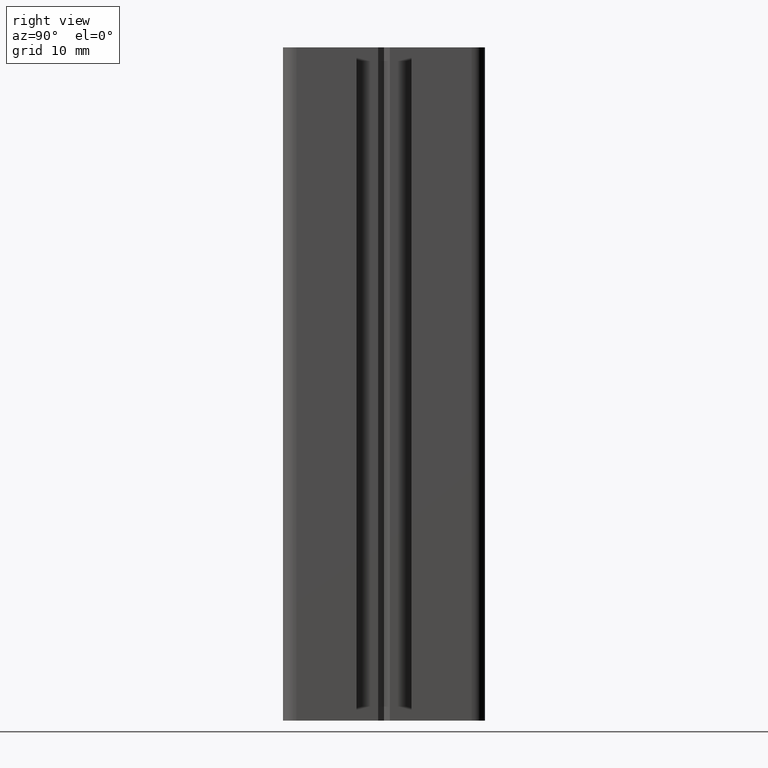
[diagram: clean part render]
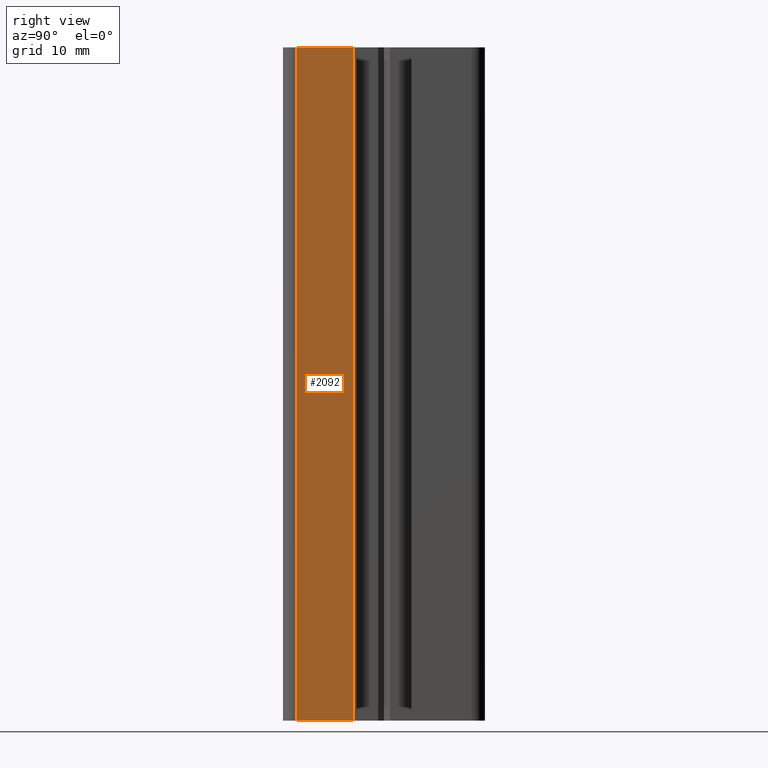
[diagram: same view with one face highlighted and labeled with its STEP entity id]
A machine part, right view. The second image highlights one B-rep face of the part: STEP entity #2092.
In plain terms, the highlighted planar face has unit normal (-1, -0, 0).
Its self-contained STEP definition (entity closure, byte-faithful):
#506 = EDGE_CURVE ( 'NONE', #1225, #1213, #2701, .T. ) ;
#632 = CARTESIAN_POINT ( 'NONE',  ( 15.00000000000000000, -4.499999999999991100, 0.0000000000000000000 ) ) ;
#655 = CARTESIAN_POINT ( 'NONE',  ( 15.00000000000001200, -12.99999999999998900, 0.0000000000000000000 ) ) ;
#704 = DIRECTION ( 'NONE',  ( -1.428595803745606200E-015, 1.000000000000000000, 0.0000000000000000000 ) ) ;
#705 = VECTOR ( 'NONE', #704, 1000.000000000000000 ) ;
#706 = CARTESIAN_POINT ( 'NONE',  ( 15.00000000000001200, -12.99999999999998900, 0.0000000000000000000 ) ) ;
#707 = LINE ( 'NONE', #706, #705 ) ;
#1213 = VERTEX_POINT ( 'NONE', #3347 ) ;
#1225 = VERTEX_POINT ( 'NONE', #3383 ) ;
#2028 = ORIENTED_EDGE ( 'NONE', *, *, #5271, .T. ) ;
#2030 = ORIENTED_EDGE ( 'NONE', *, *, #2043, .T. ) ;
#2031 = ORIENTED_EDGE ( 'NONE', *, *, #506, .F. ) ;
#2043 = EDGE_CURVE ( 'NONE', #1225, #5248, #4764, .T. ) ;
#2048 = EDGE_LOOP ( 'NONE', ( #2028, #2091, #2031, #2030 ) ) ;
#2090 = EDGE_CURVE ( 'NONE', #1213, #5219, #4814, .T. ) ;
#2091 = ORIENTED_EDGE ( 'NONE', *, *, #2090, .F. ) ;
#2092 = ADVANCED_FACE ( 'NONE', ( #4820 ), #4824, .F. ) ;
#2698 = DIRECTION ( 'NONE',  ( -1.428595803745606200E-015, 1.000000000000000000, 0.0000000000000000000 ) ) ;
#2699 = VECTOR ( 'NONE', #2698, 1000.000000000000000 ) ;
#2700 = CARTESIAN_POINT ( 'NONE',  ( 15.00000000000001200, -12.99999999999998900, 100.0000000000000000 ) ) ;
#2701 = LINE ( 'NONE', #2700, #2699 ) ;
#3347 = CARTESIAN_POINT ( 'NONE',  ( 15.00000000000000000, -4.499999999999991100, 100.0000000000000000 ) ) ;
#3383 = CARTESIAN_POINT ( 'NONE',  ( 15.00000000000001200, -12.99999999999998900, 100.0000000000000000 ) ) ;
#4761 = DIRECTION ( 'NONE',  ( -0.0000000000000000000, -0.0000000000000000000, -1.000000000000000000 ) ) ;
#4762 = VECTOR ( 'NONE', #4761, 1000.000000000000000 ) ;
#4763 = CARTESIAN_POINT ( 'NONE',  ( 15.00000000000001200, -12.99999999999998900, 100.0000000000000000 ) ) ;
#4764 = LINE ( 'NONE', #4763, #4762 ) ;
#4781 = AXIS2_PLACEMENT_3D ( 'NONE', #4802, #4801, #4800 ) ;
#4800 = DIRECTION ( 'NONE',  ( 1.428595803745606200E-015, -1.000000000000000000, 0.0000000000000000000 ) ) ;
#4801 = DIRECTION ( 'NONE',  ( -1.000000000000000000, -1.428595803745606200E-015, 0.0000000000000000000 ) ) ;
#4802 = CARTESIAN_POINT ( 'NONE',  ( 15.00000000000001200, -12.99999999999998900, 100.0000000000000000 ) ) ;
#4805 = DIRECTION ( 'NONE',  ( -0.0000000000000000000, -0.0000000000000000000, -1.000000000000000000 ) ) ;
#4806 = VECTOR ( 'NONE', #4805, 1000.000000000000000 ) ;
#4807 = CARTESIAN_POINT ( 'NONE',  ( 15.00000000000000000, -4.499999999999991100, 100.0000000000000000 ) ) ;
#4814 = LINE ( 'NONE', #4807, #4806 ) ;
#4820 = FACE_OUTER_BOUND ( 'NONE', #2048, .T. ) ;
#4824 = PLANE ( 'NONE',  #4781 ) ;
#5219 = VERTEX_POINT ( 'NONE', #632 ) ;
#5248 = VERTEX_POINT ( 'NONE', #655 ) ;
#5271 = EDGE_CURVE ( 'NONE', #5248, #5219, #707, .T. ) ;